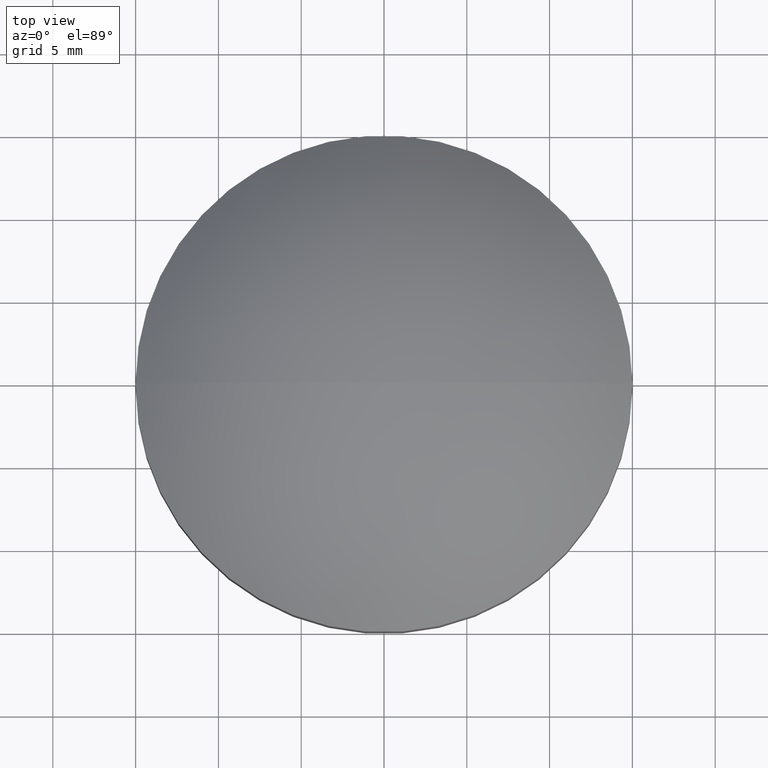
[diagram: clean part render]
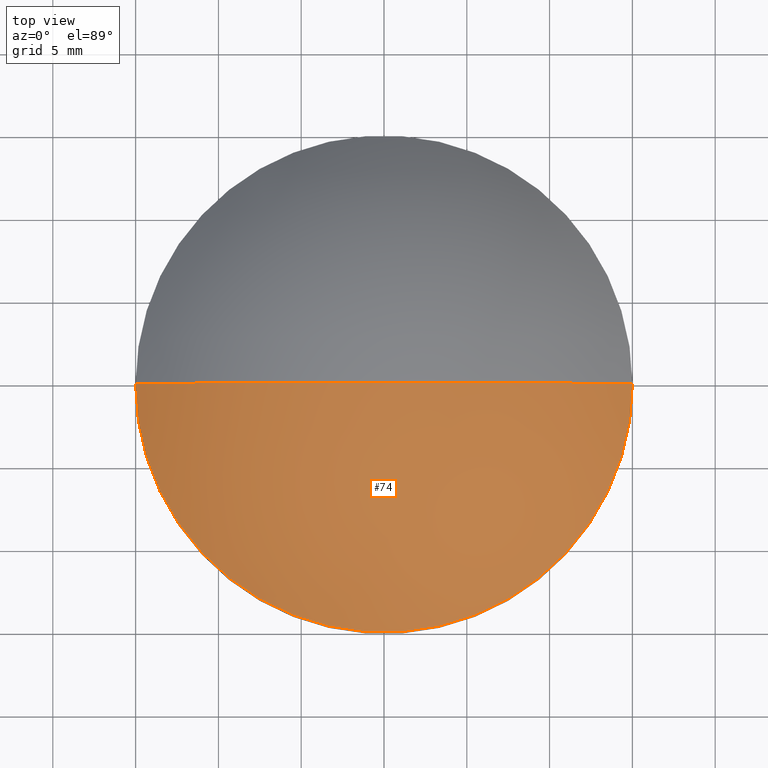
[diagram: same view with one face highlighted and labeled with its STEP entity id]
A machine part, top view. The second image highlights one B-rep face of the part: STEP entity #74.
In plain terms, the highlighted spherical surface has radius 21.9905 mm.
Its self-contained STEP definition (entity closure, byte-faithful):
#14 = EDGE_CURVE ( 'NONE', #171, #188, #201, .T. ) ;
#26 = CARTESIAN_POINT ( 'NONE',  ( 0.000000000000000000, 0.000000000000000000, 6.589999999999999858 ) ) ;
#27 = EDGE_LOOP ( 'NONE', ( #63, #79, #51 ) ) ;
#32 = VERTEX_POINT ( 'NONE', #142 ) ;
#41 = DIRECTION ( 'NONE',  ( 1.000000000000000000, -1.224646799147353207E-16, 0.000000000000000000 ) ) ;
#48 = AXIS2_PLACEMENT_3D ( 'NONE', #204, #128, #41 ) ;
#51 = ORIENTED_EDGE ( 'NONE', *, *, #154, .F. ) ;
#63 = ORIENTED_EDGE ( 'NONE', *, *, #69, .T. ) ;
#66 = DIRECTION ( 'NONE',  ( -1.000000000000000000, 0.000000000000000000, 0.000000000000000000 ) ) ;
#67 = DIRECTION ( 'NONE',  ( 0.000000000000000000, 1.000000000000000000, 0.000000000000000000 ) ) ;
#69 = EDGE_CURVE ( 'NONE', #32, #171, #211, .T. ) ;
#74 = ADVANCED_FACE ( 'NONE', ( #209 ), #212, .T. ) ;
#76 = DIRECTION ( 'NONE',  ( 0.000000000000000000, 0.000000000000000000, 1.000000000000000000 ) ) ;
#79 = ORIENTED_EDGE ( 'NONE', *, *, #14, .T. ) ;
#80 = CARTESIAN_POINT ( 'NONE',  ( 0.000000000000000000, 0.000000000000000000, -9.490532994923851717 ) ) ;
#87 = AXIS2_PLACEMENT_3D ( 'NONE', #26, #76, #97 ) ;
#97 = DIRECTION ( 'NONE',  ( 1.000000000000000000, 0.000000000000000000, 0.000000000000000000 ) ) ;
#101 = DIRECTION ( 'NONE',  ( -0.000000000000000000, -1.000000000000000000, 0.000000000000000000 ) ) ;
#121 = AXIS2_PLACEMENT_3D ( 'NONE', #147, #101, #66 ) ;
#128 = DIRECTION ( 'NONE',  ( -1.224646799147353207E-16, -1.000000000000000000, -0.000000000000000000 ) ) ;
#132 = CARTESIAN_POINT ( 'NONE',  ( 15.00000000000000000, 1.836970198721029589E-15, 6.589999999999999858 ) ) ;
#134 = DIRECTION ( 'NONE',  ( 0.000000000000000000, 0.000000000000000000, 1.000000000000000000 ) ) ;
#136 = AXIS2_PLACEMENT_3D ( 'NONE', #80, #67, #134 ) ;
#142 = CARTESIAN_POINT ( 'NONE',  ( -15.00000000000000000, 0.000000000000000000, 6.589999999999999858 ) ) ;
#147 = CARTESIAN_POINT ( 'NONE',  ( 0.000000000000000000, 0.000000000000000000, -9.490532994923851717 ) ) ;
#154 = EDGE_CURVE ( 'NONE', #32, #188, #207, .T. ) ;
#171 = VERTEX_POINT ( 'NONE', #132 ) ;
#188 = VERTEX_POINT ( 'NONE', #198 ) ;
#198 = CARTESIAN_POINT ( 'NONE',  ( -1.346531792188887738E-15, 0.000000000000000000, 12.50000000000000000 ) ) ;
#201 = CIRCLE ( 'NONE', #48, 21.99053299492385349 ) ;
#204 = CARTESIAN_POINT ( 'NONE',  ( 0.000000000000000000, 0.000000000000000000, -9.490532994923851717 ) ) ;
#207 = CIRCLE ( 'NONE', #136, 21.99053299492385349 ) ;
#209 = FACE_OUTER_BOUND ( 'NONE', #27, .T. ) ;
#211 = CIRCLE ( 'NONE', #87, 15.00000000000000000 ) ;
#212 = SPHERICAL_SURFACE ( 'NONE', #121, 21.99053299492385349 ) ;